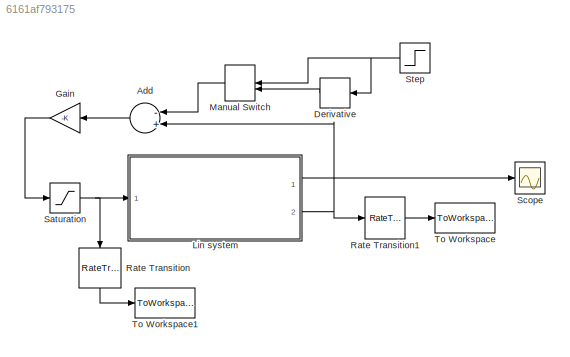
MODEL slx_6161af793175
KIND model
CONFIG AbsTol = auto
CONFIG EnableMultiTasking = off
CONFIG FixedStep = auto
CONFIG MaxStep = auto
CONFIG MinStep = auto
CONFIG RelTol = 1e-3
CONFIG SampleTimeConstraint = Unconstrained
CONFIG Solver = VariableStepAuto
CONFIG SolverName = VariableStepAuto
CONFIG StartTime = 0.0
CONFIG StopTime = simTime
BLOCK [Sum] Add
  InputSameDT = off
  Inputs = -+
  OutDataTypeStr = Inherit: Inherit via internal rule
  Ports = [2, 1]
  SaturateOnIntegerOverflow = off
BLOCK [Derivative] Derivative
  CoefficientInTFapproximation = 1
BLOCK [Gain] Gain
  Gain = -K
  Multiplication = Matrix(K*u) (u vector)
  OutDataTypeStr = Inherit: Inherit via internal rule
  ParamDataTypeStr = Inherit: Inherit via internal rule
  SaturateOnIntegerOverflow = off
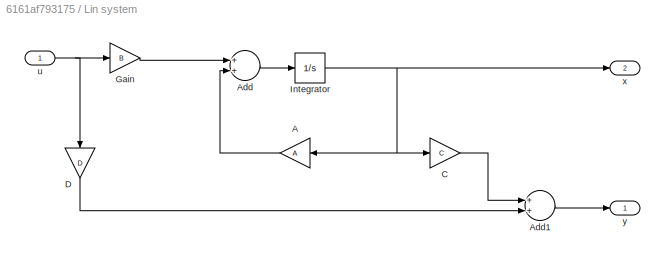
BLOCK [SubSystem] Lin system
  Ports = [1, 2]
  RequestExecContextInheritance = off
  Variant = off
BLOCK [Gain] Lin system/A
  Gain = A
  Multiplication = Matrix(K*u) (u vector)
  OutDataTypeStr = Inherit: Inherit via internal rule
  ParamDataTypeStr = Inherit: Inherit via internal rule
  SaturateOnIntegerOverflow = off
BLOCK [Sum] Lin system/Add
  InputSameDT = off
  OutDataTypeStr = Inherit: Inherit via internal rule
  Ports = [2, 1]
  SaturateOnIntegerOverflow = off
BLOCK [Sum] Lin system/Add1
  InputSameDT = off
  OutDataTypeStr = Inherit: Inherit via internal rule
  Ports = [2, 1]
  SaturateOnIntegerOverflow = off
BLOCK [Gain] Lin system/C
  Gain = C
  Multiplication = Matrix(K*u) (u vector)
  OutDataTypeStr = Inherit: Inherit via internal rule
  ParamDataTypeStr = Inherit: Inherit via internal rule
  SaturateOnIntegerOverflow = off
BLOCK [Gain] Lin system/D
  Gain = D
  Multiplication = Matrix(K*u) (u vector)
  OutDataTypeStr = Inherit: Inherit via internal rule
  ParamDataTypeStr = Inherit: Inherit via internal rule
  SaturateOnIntegerOverflow = off
BLOCK [Gain] Lin system/Gain
  Gain = B
  Multiplication = Matrix(K*u) (u vector)
  OutDataTypeStr = Inherit: Inherit via internal rule
  ParamDataTypeStr = Inherit: Inherit via internal rule
  SaturateOnIntegerOverflow = off
BLOCK [Integrator] Lin system/Integrator
  InitialCondition = x0
  Ports = [1, 1]
BLOCK [Inport] Lin system/u
  IconDisplay = Port number
BLOCK [Outport] Lin system/x
  IconDisplay = Port number
  Port = 2
BLOCK [Outport] Lin system/y
  IconDisplay = Port number
BLOCK [ManualSwitch] Manual Switch
BLOCK [RateTransition] Rate Transition
BLOCK [RateTransition] Rate Transition1
  OutPortSampleTime = Ts
BLOCK [Saturate] Saturation
  InputPortMap = u0
  LowerLimit = -5
  Ports = [1, 1]
  UpperLimit = 5
BLOCK [Scope] Scope
  NumInputPorts = 1
  Ports = [1]
  ScopeSpecificationString = Simulink.scopes.TimeScopeBlockCfg('CurrentConfiguration', extmgr.ConfigurationSet(extmgr.Configuration('Core','General UI',true),extmgr.Configuration('Core','Source UI',true),extmgr.Configuration('Sources','WiredSimulink',true),extmgr.Configuration('Visuals','Time Domain',true,'SerializedDisplays',{struct('MinYLimReal','-14.11661','MaxYLimReal','24.38524','YLabelReal','','MinYLimMag','0.00000','Ma...<+1374ch>
BLOCK [Step] Step
  After = [theta_d;0;0;0]
  Before = x0
  SampleTime = 0
  Time = 0.1*simTime
BLOCK [ToWorkspace] To Workspace
  FixptAsFi = on
  MaxDataPoints = inf
  Ports = [1]
  SampleTime = -1
  Save2DSignal = 3-D array (concatenate along third dimension)
  SaveFormat = Timeseries
  VariableName = sim_data
BLOCK [ToWorkspace] To Workspace1
  FixptAsFi = on
  MaxDataPoints = inf
  Ports = [1]
  SampleTime = Ts
  Save2DSignal = 3-D array (concatenate along third dimension)
  SaveFormat = Timeseries
  VariableName = input_data
LINE Add:1 -> Gain:1
LINE Derivative:1 -> Manual Switch:2
LINE Gain:1 -> Saturation:1
LINE Lin system/A:1 -> Lin system/Add:2
LINE Lin system/Add1:1 -> Lin system/y:1
LINE Lin system/Add:1 -> Lin system/Integrator:1
LINE Lin system/C:1 -> Lin system/Add1:1
LINE Lin system/D:1 -> Lin system/Add1:2
LINE Lin system/Gain:1 -> Lin system/Add:1
NET Lin system/Integrator:1 -> Lin system/A:1, Lin system/C:1, Lin system/x:1
NET Lin system/u:1 -> Lin system/D:1, Lin system/Gain:1
LINE Lin system:1 -> Scope:1
NET Lin system:2 -> Add:2, Rate Transition1:1
LINE Manual Switch:1 -> Add:1
LINE Rate Transition1:1 -> To Workspace:1
LINE Rate Transition:1 -> To Workspace1:1
NET Saturation:1 -> Lin system:1, Rate Transition:1
NET Step:1 -> Derivative:1, Manual Switch:1
note: NET lines group one-source signal fan-out (src -> all destinations, sorted); 1:1 wires keep LINE
